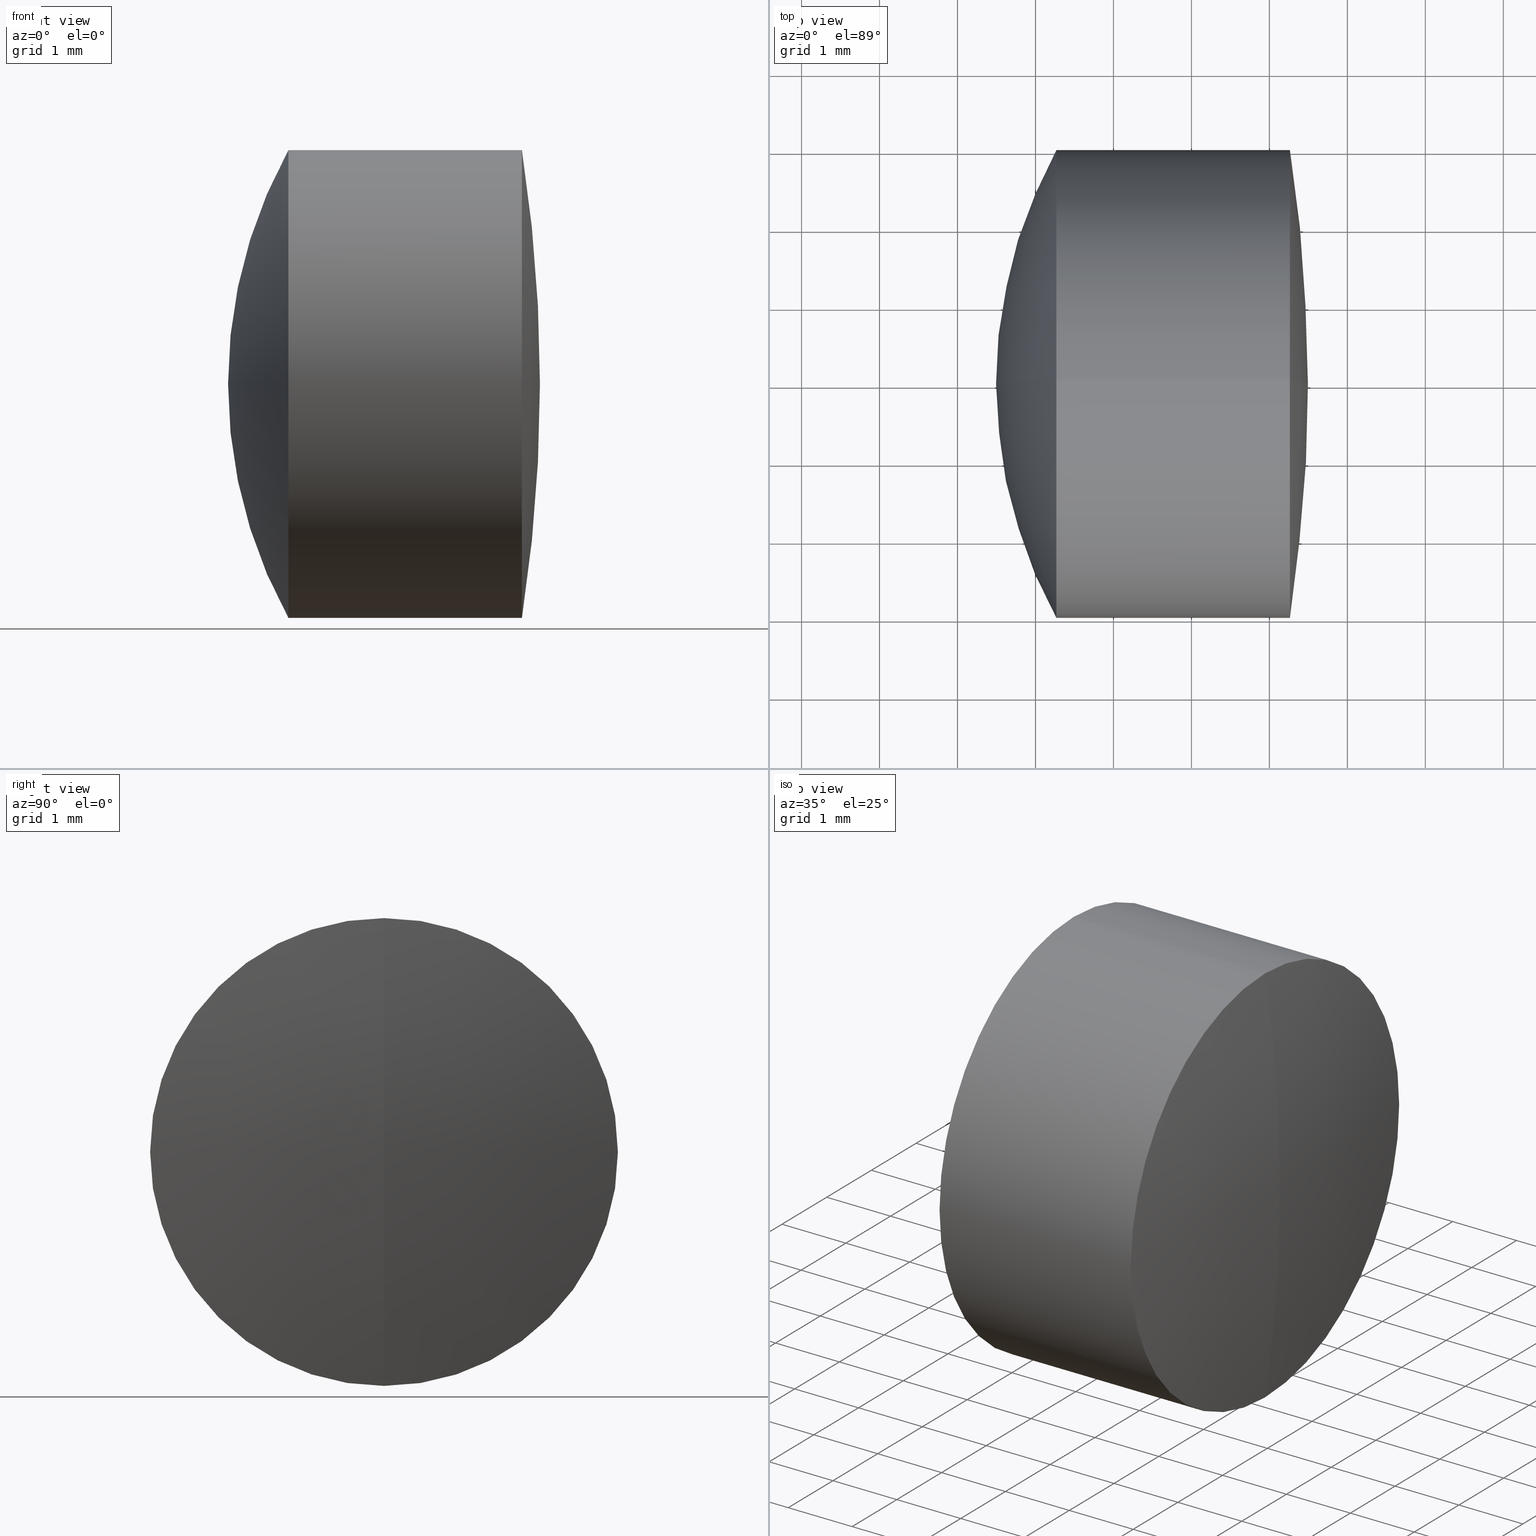
[diagram: canonical four-view strip — front | top / right | iso, engineering-drawing reading convention]
A machine part, canonical four-view strip (front | top / right | iso — engineering-drawing reading convention). The complete STEP part file that produces these views, byte-faithful:
ISO-10303-21;
HEADER;
FILE_DESCRIPTION (( 'STEP AP214' ),
    '1' );
FILE_NAME ('145006.STEP',
    '2019-05-06T08:13:43',
    ( 'user' ),
    ( '΢���й�' ),
    'SwSTEP 2.0',
    'SolidWorks 2016',
    '' );
FILE_SCHEMA (( 'AUTOMOTIVE_DESIGN' ));
ENDSEC;

DATA;
#1 = CARTESIAN_POINT ( 'NONE',  ( 2.881554070428458600, 0.0000000000000000000, 0.0000000000000000000 ) ) ;
#2 = CARTESIAN_POINT ( 'NONE',  ( 2.881554070428458600, 0.0000000000000000000, 0.0000000000000000000 ) ) ;
#3 = ADVANCED_FACE ( 'NONE', ( #130 ), #185, .T. ) ;
#4 = AXIS2_PLACEMENT_3D ( 'NONE', #27, #309, #134 ) ;
#5 = SPHERICAL_SURFACE ( 'NONE', #325, 19.60000000000000100 ) ;
#6 = DIRECTION ( 'NONE',  ( 0.0000000000000000000, -1.000000000000000000, 0.0000000000000000000 ) ) ;
#7 = ORIENTED_EDGE ( 'NONE', *, *, #293, .F. ) ;
#8 = CARTESIAN_POINT ( 'NONE',  ( 2.881554070428458100, 0.0000000000000000000, 3.000000000000000000 ) ) ;
#9 = ORIENTED_EDGE ( 'NONE', *, *, #315, .T. ) ;
#10 = AXIS2_PLACEMENT_3D ( 'NONE', #57, #6, #75 ) ;
#11 = CARTESIAN_POINT ( 'NONE',  ( -0.6055650844040809700, 0.0000000000000000000, 3.388131789017201400E-018 ) ) ;
#12 = CLOSED_SHELL ( 'NONE', ( #177, #291, #207, #256, #34, #229 ) ) ;
#13 = DIRECTION ( 'NONE',  ( 0.0000000000000000000, 0.0000000000000000000, 1.000000000000000000 ) ) ;
#14 = EDGE_CURVE ( 'NONE', #227, #132, #180, .T. ) ;
#15 = SHAPE_DEFINITION_REPRESENTATION ( #47, #55 ) ;
#16 = AXIS2_PLACEMENT_3D ( 'NONE', #219, #267, #45 ) ;
#17 = ORIENTED_EDGE ( 'NONE', *, *, #197, .T. ) ;
#18 = DIRECTION ( 'NONE',  ( 0.0000000000000000000, 1.000000000000000000, 0.0000000000000000000 ) ) ;
#19 =( NAMED_UNIT ( * ) PLANE_ANGLE_UNIT ( ) SI_UNIT ( $, .RADIAN. ) );
#20 = MANIFOLD_SOLID_BREP ( '��ת3', #37 ) ;
#21 = CARTESIAN_POINT ( 'NONE',  ( 7.694434915595918400, 0.0000000000000000000, 3.388131899457728100E-018 ) ) ;
#22 = ORIENTED_EDGE ( 'NONE', *, *, #332, .F. ) ;
#23 = FILL_AREA_STYLE ('',( #224 ) ) ;
#24 = AXIS2_PLACEMENT_3D ( 'NONE', #175, #96, #269 ) ;
#25 = VERTEX_POINT ( 'NONE', #114 ) ;
#26 = SPHERICAL_SURFACE ( 'NONE', #192, 6.199999999999998400 ) ;
#27 = CARTESIAN_POINT ( 'NONE',  ( 7.694434915595918400, 0.0000000000000000000, 3.388131899457728100E-018 ) ) ;
#28 = EDGE_CURVE ( 'NONE', #187, #33, #204, .T. ) ;
#29 =( NAMED_UNIT ( * ) PLANE_ANGLE_UNIT ( ) SI_UNIT ( $, .RADIAN. ) );
#30 = CARTESIAN_POINT ( 'NONE',  ( -0.6055650844040809700, 0.0000000000000000000, 3.388131789017201400E-018 ) ) ;
#31 = DIRECTION ( 'NONE',  ( 0.0000000000000000000, -1.000000000000000000, -1.224646799147353200E-016 ) ) ;
#32 = SPHERICAL_SURFACE ( 'NONE', #186, 6.199999999999998400 ) ;
#33 = VERTEX_POINT ( 'NONE', #143 ) ;
#34 = ADVANCED_FACE ( 'NONE', ( #344 ), #145, .T. ) ;
#35 = CARTESIAN_POINT ( 'NONE',  ( 5.263482388303502000, 0.0000000000000000000, 0.0000000000000000000 ) ) ;
#36 = AXIS2_PLACEMENT_3D ( 'NONE', #339, #196, #314 ) ;
#37 = CLOSED_SHELL ( 'NONE', ( #183, #3, #115, #342, #118, #51 ) ) ;
#38 = ORIENTED_EDGE ( 'NONE', *, *, #95, .F. ) ;
#39 = SPHERICAL_SURFACE ( 'NONE', #16, 4.599999999999999600 ) ;
#40 = VECTOR ( 'NONE', #149, 1000.000000000000000 ) ;
#41 = DIRECTION ( 'NONE',  ( -0.0000000000000000000, 1.000000000000000000, 1.224646799147353200E-016 ) ) ;
#42 = FACE_OUTER_BOUND ( 'NONE', #168, .T. ) ;
#43 = AXIS2_PLACEMENT_3D ( 'NONE', #272, #67, #239 ) ;
#44 = CARTESIAN_POINT ( 'NONE',  ( 2.881554070428458100, 0.0000000000000000000, 0.0000000000000000000 ) ) ;
#45 = DIRECTION ( 'NONE',  ( 0.0000000000000000000, 0.0000000000000000000, 1.000000000000000000 ) ) ;
#46 = CIRCLE ( 'NONE', #335, 2.999999999999997800 ) ;
#47 = PRODUCT_DEFINITION_SHAPE ( 'NONE', 'NONE',  #52 ) ;
#48 = FACE_OUTER_BOUND ( 'NONE', #199, .T. ) ;
#49 = EDGE_LOOP ( 'NONE', ( #218, #247, #151 ) ) ;
#50 =( NAMED_UNIT ( * ) PLANE_ANGLE_UNIT ( ) SI_UNIT ( $, .RADIAN. ) );
#51 = ADVANCED_FACE ( 'NONE', ( #89 ), #5, .T. ) ;
#52 = PRODUCT_DEFINITION ( 'δ֪', '', #73, #74 ) ;
#53 = CARTESIAN_POINT ( 'NONE',  ( -14.10556508440408200, 0.0000000000000000000, 0.0000000000000000000 ) ) ;
#54 = CARTESIAN_POINT ( 'NONE',  ( 0.0000000000000000000, 0.0000000000000000000, 0.0000000000000000000 ) ) ;
#55 = ADVANCED_BREP_SHAPE_REPRESENTATION ( '145006', ( #154, #20, #62 ), #69 ) ;
#56 = UNCERTAINTY_MEASURE_WITH_UNIT (LENGTH_MEASURE( 1.000000000000000100E-005 ), #276, 'distance_accuracy_value', 'NONE');
#57 = CARTESIAN_POINT ( 'NONE',  ( -0.6055650844040809700, 0.0000000000000000000, 3.388131789017201400E-018 ) ) ;
#58 = MECHANICAL_DESIGN_GEOMETRIC_PRESENTATION_REPRESENTATION (  '', ( #243 ), #305 ) ;
#59 = LINE ( 'NONE', #161, #288 ) ;
#60 = PRODUCT_CONTEXT ( 'NONE', #107, 'mechanical' ) ;
#61 = CARTESIAN_POINT ( 'NONE',  ( -0.5519199926577972300, 0.0000000000000000000, 0.0000000000000000000 ) ) ;
#62 = AXIS2_PLACEMENT_3D ( 'NONE', #54, #82, #265 ) ;
#63 = VECTOR ( 'NONE', #216, 1000.000000000000000 ) ;
#64 = EDGE_CURVE ( 'NONE', #232, #132, #79, .T. ) ;
#65 = VECTOR ( 'NONE', #310, 1000.000000000000000 ) ;
#66 = SURFACE_SIDE_STYLE ('',( #214 ) ) ;
#67 = DIRECTION ( 'NONE',  ( -1.000000000000000000, -0.0000000000000000000, -0.0000000000000000000 ) ) ;
#68 = CIRCLE ( 'NONE', #289, 2.999999999999998700 ) ;
#69 =( GEOMETRIC_REPRESENTATION_CONTEXT ( 3 ) GLOBAL_UNCERTAINTY_ASSIGNED_CONTEXT ( ( #56 ) ) GLOBAL_UNIT_ASSIGNED_CONTEXT ( ( #276, #19, #321 ) ) REPRESENTATION_CONTEXT ( 'NONE', 'WORKASPACE' ) );
#70 = ORIENTED_EDGE ( 'NONE', *, *, #274, .T. ) ;
#71 = CARTESIAN_POINT ( 'NONE',  ( -14.10556508440408200, 0.0000000000000000000, 0.0000000000000000000 ) ) ;
#72 = DIRECTION ( 'NONE',  ( 0.0000000000000000000, 0.0000000000000000000, 1.000000000000000000 ) ) ;
#73 = PRODUCT_DEFINITION_FORMATION_WITH_SPECIFIED_SOURCE ( '�κ�', '', #194, .NOT_KNOWN. ) ;
#74 = PRODUCT_DEFINITION_CONTEXT ( 'detailed design', #302, 'design' ) ;
#75 = DIRECTION ( 'NONE',  ( 0.0000000000000000000, 0.0000000000000000000, -1.000000000000000000 ) ) ;
#76 = AXIS2_PLACEMENT_3D ( 'NONE', #44, #163, #258 ) ;
#77 = DIRECTION ( 'NONE',  ( 0.0000000000000000000, 0.0000000000000000000, -1.000000000000000000 ) ) ;
#78 = ORIENTED_EDGE ( 'NONE', *, *, #279, .F. ) ;
#79 = CIRCLE ( 'NONE', #10, 4.599999999999999600 ) ;
#80 = EDGE_CURVE ( 'NONE', #131, #206, #59, .T. ) ;
#81 = AXIS2_PLACEMENT_3D ( 'NONE', #318, #198, #72 ) ;
#82 = DIRECTION ( 'NONE',  ( 0.0000000000000000000, 0.0000000000000000000, 1.000000000000000000 ) ) ;
#83 = FACE_OUTER_BOUND ( 'NONE', #213, .T. ) ;
#84 = DIRECTION ( 'NONE',  ( -1.000000000000000000, -0.0000000000000000000, -0.0000000000000000000 ) ) ;
#85 = EDGE_LOOP ( 'NONE', ( #137, #306, #22 ) ) ;
#86 = UNCERTAINTY_MEASURE_WITH_UNIT (LENGTH_MEASURE( 1.000000000000000100E-005 ), #116, 'distance_accuracy_value', 'NONE');
#87 = AXIS2_PLACEMENT_3D ( 'NONE', #324, #295, #217 ) ;
#88 = DIRECTION ( 'NONE',  ( 0.0000000000000000000, 0.0000000000000000000, 1.000000000000000000 ) ) ;
#89 = FACE_OUTER_BOUND ( 'NONE', #170, .T. ) ;
#90 = DIRECTION ( 'NONE',  ( 0.0000000000000000000, -1.224646799147353200E-016, 1.000000000000000000 ) ) ;
#91 = DIRECTION ( 'NONE',  ( 0.0000000000000000000, -1.224646799147353200E-016, 1.000000000000000000 ) ) ;
#92 = CIRCLE ( 'NONE', #87, 3.000000000000000000 ) ;
#93 = SURFACE_SIDE_STYLE ('',( #113 ) ) ;
#94 = DIRECTION ( 'NONE',  ( -1.000000000000000000, -0.0000000000000000000, -0.0000000000000000000 ) ) ;
#95 = EDGE_CURVE ( 'NONE', #227, #231, #195, .T. ) ;
#96 = DIRECTION ( 'NONE',  ( 0.0000000000000000000, 1.000000000000000000, 0.0000000000000000000 ) ) ;
#97 = ORIENTED_EDGE ( 'NONE', *, *, #138, .F. ) ;
#98 = DIRECTION ( 'NONE',  ( -1.000000000000000000, -0.0000000000000000000, -0.0000000000000000000 ) ) ;
#99 = PRESENTATION_LAYER_ASSIGNMENT (  '', '', ( #243 ) ) ;
#100 = CARTESIAN_POINT ( 'NONE',  ( -0.8160621761658039000, 0.0000000000000000000, 0.0000000000000000000 ) ) ;
#101 = UNCERTAINTY_MEASURE_WITH_UNIT (LENGTH_MEASURE( 1.000000000000000100E-005 ), #135, 'distance_accuracy_value', 'NONE');
#102 = EDGE_LOOP ( 'NONE', ( #127, #70, #223 ) ) ;
#103 =( NAMED_UNIT ( * ) PLANE_ANGLE_UNIT ( ) SI_UNIT ( $, .RADIAN. ) );
#104 = CIRCLE ( 'NONE', #211, 3.000000000000000000 ) ;
#105 = DIRECTION ( 'NONE',  ( 0.0000000000000000000, -1.000000000000000000, 0.0000000000000000000 ) ) ;
#106 = ORIENTED_EDGE ( 'NONE', *, *, #249, .F. ) ;
#107 = APPLICATION_CONTEXT ( 'automotive_design' ) ;
#108 = CARTESIAN_POINT ( 'NONE',  ( 2.881554070428458100, 0.0000000000000000000, 0.0000000000000000000 ) ) ;
#109 = STYLED_ITEM ( 'NONE', ( #119 ), #154 ) ;
#110 = FILL_AREA_STYLE ('',( #241 ) ) ;
#111 = CIRCLE ( 'NONE', #164, 4.599999999999999600 ) ;
#112 = AXIS2_PLACEMENT_3D ( 'NONE', #2, #343, #166 ) ;
#113 = SURFACE_STYLE_FILL_AREA ( #148 ) ;
#114 = CARTESIAN_POINT ( 'NONE',  ( 3.994434915595919100, 0.0000000000000000000, 2.850568955929084100E-016 ) ) ;
#115 = ADVANCED_FACE ( 'NONE', ( #273 ), #209, .F. ) ;
#116 =( LENGTH_UNIT ( ) NAMED_UNIT ( * ) SI_UNIT ( .MILLI., .METRE. ) );
#117 = AXIS2_PLACEMENT_3D ( 'NONE', #307, #299, #286 ) ;
#118 = ADVANCED_FACE ( 'NONE', ( #83 ), #346, .T. ) ;
#119 = PRESENTATION_STYLE_ASSIGNMENT (( #129 ) ) ;
#120 = EDGE_LOOP ( 'NONE', ( #97, #320, #270 ) ) ;
#121 = ORIENTED_EDGE ( 'NONE', *, *, #80, .T. ) ;
#122 = SPHERICAL_SURFACE ( 'NONE', #36, 4.599999999999999600 ) ;
#123 = AXIS2_PLACEMENT_3D ( 'NONE', #303, #31, #202 ) ;
#124 = DIRECTION ( 'NONE',  ( -0.0000000000000000000, 1.000000000000000000, 1.224646799147353200E-016 ) ) ;
#125 = CARTESIAN_POINT ( 'NONE',  ( -14.10556508440408200, 0.0000000000000000000, 0.0000000000000000000 ) ) ;
#126 = AXIS2_PLACEMENT_3D ( 'NONE', #11, #41, #90 ) ;
#127 = ORIENTED_EDGE ( 'NONE', *, *, #203, .F. ) ;
#128 = EDGE_LOOP ( 'NONE', ( #222, #17, #257 ) ) ;
#129 = SURFACE_STYLE_USAGE ( .BOTH. , #66 ) ;
#130 = FACE_OUTER_BOUND ( 'NONE', #157, .T. ) ;
#131 = VERTEX_POINT ( 'NONE', #262 ) ;
#132 = VERTEX_POINT ( 'NONE', #8 ) ;
#133 = DIRECTION ( 'NONE',  ( 0.0000000000000000000, -1.000000000000000000, 0.0000000000000000000 ) ) ;
#134 = DIRECTION ( 'NONE',  ( 0.0000000000000000000, 0.0000000000000000000, 1.000000000000000000 ) ) ;
#135 =( LENGTH_UNIT ( ) NAMED_UNIT ( * ) SI_UNIT ( .MILLI., .METRE. ) );
#136 = DIRECTION ( 'NONE',  ( -0.0000000000000000000, 1.000000000000000000, 1.224646799147353200E-016 ) ) ;
#137 = ORIENTED_EDGE ( 'NONE', *, *, #249, .T. ) ;
#138 = EDGE_CURVE ( 'NONE', #300, #200, #250, .T. ) ;
#139 =( NAMED_UNIT ( * ) SI_UNIT ( $, .STERADIAN. ) SOLID_ANGLE_UNIT ( ) );
#140 = CYLINDRICAL_SURFACE ( 'NONE', #311, 3.000000000000000000 ) ;
#141 = DIRECTION ( 'NONE',  ( -1.000000000000000000, -0.0000000000000000000, -0.0000000000000000000 ) ) ;
#142 = CARTESIAN_POINT ( 'NONE',  ( 2.881554070428458600, 0.0000000000000000000, 2.999999999999998200 ) ) ;
#143 = CARTESIAN_POINT ( 'NONE',  ( 1.494434915595920500, 0.0000000000000000000, -3.762523758362216700E-016 ) ) ;
#144 = EDGE_CURVE ( 'NONE', #132, #227, #281, .T. ) ;
#145 = CYLINDRICAL_SURFACE ( 'NONE', #43, 3.000000000000000000 ) ;
#146 = ORIENTED_EDGE ( 'NONE', *, *, #220, .T. ) ;
#147 = CARTESIAN_POINT ( 'NONE',  ( 2.268570929095705200, 0.0000000000000000000, 0.0000000000000000000 ) ) ;
#148 = FILL_AREA_STYLE ('',( #316 ) ) ;
#149 = DIRECTION ( 'NONE',  ( -1.000000000000000000, -0.0000000000000000000, -0.0000000000000000000 ) ) ;
#150 =( GEOMETRIC_REPRESENTATION_CONTEXT ( 3 ) GLOBAL_UNCERTAINTY_ASSIGNED_CONTEXT ( ( #101 ) ) GLOBAL_UNIT_ASSIGNED_CONTEXT ( ( #135, #103, #282 ) ) REPRESENTATION_CONTEXT ( 'NONE', 'WORKASPACE' ) );
#151 = ORIENTED_EDGE ( 'NONE', *, *, #179, .T. ) ;
#152 = DIRECTION ( 'NONE',  ( 0.0000000000000000000, 0.0000000000000000000, 1.000000000000000000 ) ) ;
#153 = DIRECTION ( 'NONE',  ( 0.0000000000000000000, 1.000000000000000000, 0.0000000000000000000 ) ) ;
#154 = MANIFOLD_SOLID_BREP ( '��ת1', #12 ) ;
#155 = CIRCLE ( 'NONE', #117, 2.999999999999997800 ) ;
#156 = CARTESIAN_POINT ( 'NONE',  ( -0.6055650844040809700, 0.0000000000000000000, 3.388131789017201400E-018 ) ) ;
#157 = EDGE_LOOP ( 'NONE', ( #146, #121, #7, #78 ) ) ;
#158 = DIRECTION ( 'NONE',  ( -0.0000000000000000000, -1.000000000000000000, -0.0000000000000000000 ) ) ;
#159 = MECHANICAL_DESIGN_GEOMETRIC_PRESENTATION_REPRESENTATION (  '', ( #109 ), #150 ) ;
#160 = LINE ( 'NONE', #245, #65 ) ;
#161 = CARTESIAN_POINT ( 'NONE',  ( -0.5519199926577972300, 3.673940397442057900E-016, -2.999999999999998200 ) ) ;
#162 = ORIENTED_EDGE ( 'NONE', *, *, #64, .F. ) ;
#163 = DIRECTION ( 'NONE',  ( -1.000000000000000000, -0.0000000000000000000, -0.0000000000000000000 ) ) ;
#164 = AXIS2_PLACEMENT_3D ( 'NONE', #156, #105, #167 ) ;
#165 = COLOUR_RGB ( '',1.000000000000000000, 1.000000000000000000, 1.000000000000000000 ) ;
#166 = DIRECTION ( 'NONE',  ( 0.0000000000000000000, 0.0000000000000000000, 1.000000000000000000 ) ) ;
#167 = DIRECTION ( 'NONE',  ( 0.0000000000000000000, 0.0000000000000000000, -1.000000000000000000 ) ) ;
#168 = EDGE_LOOP ( 'NONE', ( #172, #259, #242, #333 ) ) ;
#169 = AXIS2_PLACEMENT_3D ( 'NONE', #61, #84, #251 ) ;
#170 = EDGE_LOOP ( 'NONE', ( #290, #190, #331 ) ) ;
#171 = ORIENTED_EDGE ( 'NONE', *, *, #236, .T. ) ;
#172 = ORIENTED_EDGE ( 'NONE', *, *, #144, .T. ) ;
#173 = AXIS2_PLACEMENT_3D ( 'NONE', #125, #153, #234 ) ;
#174 = COLOUR_RGB ( '',1.000000000000000000, 1.000000000000000000, 1.000000000000000000 ) ;
#175 = CARTESIAN_POINT ( 'NONE',  ( -0.6055650844040809700, 0.0000000000000000000, 3.388131789017201400E-018 ) ) ;
#176 = EDGE_LOOP ( 'NONE', ( #38, #212, #171, #106 ) ) ;
#177 = ADVANCED_FACE ( 'NONE', ( #329 ), #122, .T. ) ;
#178 = CIRCLE ( 'NONE', #271, 19.60000000000000100 ) ;
#179 = EDGE_CURVE ( 'NONE', #206, #308, #230, .T. ) ;
#180 = CIRCLE ( 'NONE', #76, 3.000000000000000000 ) ;
#181 = UNCERTAINTY_MEASURE_WITH_UNIT (LENGTH_MEASURE( 1.000000000000000100E-005 ), #340, 'distance_accuracy_value', 'NONE');
#182 = DIRECTION ( 'NONE',  ( -0.0000000000000000000, -1.000000000000000000, -0.0000000000000000000 ) ) ;
#183 = ADVANCED_FACE ( 'NONE', ( #225 ), #326, .T. ) ;
#184 = DIRECTION ( 'NONE',  ( 0.0000000000000000000, -1.224646799147353200E-016, 1.000000000000000000 ) ) ;
#185 = CYLINDRICAL_SURFACE ( 'NONE', #169, 2.999999999999998200 ) ;
#186 = AXIS2_PLACEMENT_3D ( 'NONE', #201, #182, #221 ) ;
#187 = VERTEX_POINT ( 'NONE', #205 ) ;
#188 = DIRECTION ( 'NONE',  ( 0.0000000000000000000, 0.0000000000000000000, -1.000000000000000000 ) ) ;
#189 = FACE_OUTER_BOUND ( 'NONE', #85, .T. ) ;
#190 = ORIENTED_EDGE ( 'NONE', *, *, #138, .T. ) ;
#191 = CARTESIAN_POINT ( 'NONE',  ( 5.494434915595920000, 0.0000000000000000000, 1.200153863164406300E-015 ) ) ;
#192 = AXIS2_PLACEMENT_3D ( 'NONE', #21, #158, #77 ) ;
#193 = APPLICATION_PROTOCOL_DEFINITION ( 'draft international standard', 'automotive_design', 1998, #302 ) ;
#194 = PRODUCT ( '145006', '145006', '', ( #60 ) ) ;
#195 = LINE ( 'NONE', #292, #40 ) ;
#196 = DIRECTION ( 'NONE',  ( 0.0000000000000000000, 1.000000000000000000, 0.0000000000000000000 ) ) ;
#197 = EDGE_CURVE ( 'NONE', #187, #231, #92, .T. ) ;
#198 = DIRECTION ( 'NONE',  ( -1.000000000000000000, -0.0000000000000000000, -0.0000000000000000000 ) ) ;
#199 = EDGE_LOOP ( 'NONE', ( #278, #319, #210 ) ) ;
#200 = VERTEX_POINT ( 'NONE', #322 ) ;
#201 = CARTESIAN_POINT ( 'NONE',  ( 7.694434915595918400, 0.0000000000000000000, 3.388131899457728100E-018 ) ) ;
#202 = DIRECTION ( 'NONE',  ( 0.0000000000000000000, 1.224646799147353200E-016, -1.000000000000000000 ) ) ;
#203 = EDGE_CURVE ( 'NONE', #25, #206, #240, .T. ) ;
#204 = CIRCLE ( 'NONE', #123, 6.199999999999998400 ) ;
#205 = CARTESIAN_POINT ( 'NONE',  ( 2.268570929095705700, -3.673940397442059400E-016, 3.000000000000000000 ) ) ;
#206 = VERTEX_POINT ( 'NONE', #347 ) ;
#207 = ADVANCED_FACE ( 'NONE', ( #189 ), #26, .T. ) ;
#208 = CARTESIAN_POINT ( 'NONE',  ( -0.5519199926577972300, 0.0000000000000000000, 2.999999999999998200 ) ) ;
#209 = SPHERICAL_SURFACE ( 'NONE', #24, 4.599999999999999600 ) ;
#210 = ORIENTED_EDGE ( 'NONE', *, *, #14, .F. ) ;
#211 = AXIS2_PLACEMENT_3D ( 'NONE', #147, #297, #13 ) ;
#212 = ORIENTED_EDGE ( 'NONE', *, *, #14, .T. ) ;
#213 = EDGE_LOOP ( 'NONE', ( #336, #9, #327, #284 ) ) ;
#214 = SURFACE_STYLE_FILL_AREA ( #110 ) ;
#215 = PRESENTATION_LAYER_ASSIGNMENT (  '', '', ( #109 ) ) ;
#216 = DIRECTION ( 'NONE',  ( -1.000000000000000000, -0.0000000000000000000, -0.0000000000000000000 ) ) ;
#217 = DIRECTION ( 'NONE',  ( 0.0000000000000000000, 0.0000000000000000000, 1.000000000000000000 ) ) ;
#218 = ORIENTED_EDGE ( 'NONE', *, *, #274, .F. ) ;
#219 = CARTESIAN_POINT ( 'NONE',  ( -0.6055650844040809700, 0.0000000000000000000, 3.388131789017201400E-018 ) ) ;
#220 = EDGE_CURVE ( 'NONE', #200, #131, #155, .T. ) ;
#221 = DIRECTION ( 'NONE',  ( 0.0000000000000000000, 0.0000000000000000000, -1.000000000000000000 ) ) ;
#222 = ORIENTED_EDGE ( 'NONE', *, *, #28, .F. ) ;
#223 = ORIENTED_EDGE ( 'NONE', *, *, #293, .T. ) ;
#224 = FILL_AREA_STYLE_COLOUR ( '', #323 ) ;
#225 = FACE_OUTER_BOUND ( 'NONE', #120, .T. ) ;
#226 = AXIS2_PLACEMENT_3D ( 'NONE', #312, #328, #253 ) ;
#227 = VERTEX_POINT ( 'NONE', #337 ) ;
#228 = FACE_OUTER_BOUND ( 'NONE', #102, .T. ) ;
#229 = ADVANCED_FACE ( 'NONE', ( #48 ), #317, .T. ) ;
#230 = CIRCLE ( 'NONE', #112, 2.999999999999998700 ) ;
#231 = VERTEX_POINT ( 'NONE', #345 ) ;
#232 = VERTEX_POINT ( 'NONE', #244 ) ;
#233 = SURFACE_SIDE_STYLE ('',( #313 ) ) ;
#234 = DIRECTION ( 'NONE',  ( 0.0000000000000000000, 0.0000000000000000000, 1.000000000000000000 ) ) ;
#235 = PRESENTATION_STYLE_ASSIGNMENT (( #246 ) ) ;
#236 = EDGE_CURVE ( 'NONE', #132, #187, #160, .T. ) ;
#237 = PRESENTATION_LAYER_ASSIGNMENT (  '', '', ( #260 ) ) ;
#238 = DIRECTION ( 'NONE',  ( -1.000000000000000000, -0.0000000000000000000, -0.0000000000000000000 ) ) ;
#239 = DIRECTION ( 'NONE',  ( 0.0000000000000000000, 0.0000000000000000000, 1.000000000000000000 ) ) ;
#240 = CIRCLE ( 'NONE', #126, 4.599999999999999600 ) ;
#241 = FILL_AREA_STYLE_COLOUR ( '', #174 ) ;
#242 = ORIENTED_EDGE ( 'NONE', *, *, #197, .F. ) ;
#243 = STYLED_ITEM ( 'NONE', ( #268 ), #20 ) ;
#244 = CARTESIAN_POINT ( 'NONE',  ( 3.994434915595919100, 0.0000000000000000000, 2.850568955929084100E-016 ) ) ;
#245 = CARTESIAN_POINT ( 'NONE',  ( -0.8160621761658039000, 0.0000000000000000000, 3.000000000000000000 ) ) ;
#246 = SURFACE_STYLE_USAGE ( .BOTH. , #233 ) ;
#247 = ORIENTED_EDGE ( 'NONE', *, *, #203, .T. ) ;
#248 = AXIS2_PLACEMENT_3D ( 'NONE', #30, #136, #91 ) ;
#249 = EDGE_CURVE ( 'NONE', #231, #187, #104, .T. ) ;
#250 = CIRCLE ( 'NONE', #255, 19.60000000000000100 ) ;
#251 = DIRECTION ( 'NONE',  ( 0.0000000000000000000, 0.0000000000000000000, 1.000000000000000000 ) ) ;
#252 = EDGE_LOOP ( 'NONE', ( #162, #301, #283 ) ) ;
#253 = DIRECTION ( 'NONE',  ( 0.0000000000000000000, 0.0000000000000000000, 1.000000000000000000 ) ) ;
#254 = LINE ( 'NONE', #208, #63 ) ;
#255 = AXIS2_PLACEMENT_3D ( 'NONE', #280, #133, #188 ) ;
#256 = ADVANCED_FACE ( 'NONE', ( #304 ), #32, .T. ) ;
#257 = ORIENTED_EDGE ( 'NONE', *, *, #332, .T. ) ;
#258 = DIRECTION ( 'NONE',  ( 0.0000000000000000000, 0.0000000000000000000, 1.000000000000000000 ) ) ;
#259 = ORIENTED_EDGE ( 'NONE', *, *, #95, .T. ) ;
#260 = STYLED_ITEM ( 'NONE', ( #235 ), #55 ) ;
#261 = DIRECTION ( 'NONE',  ( 0.0000000000000000000, 0.0000000000000000000, 1.000000000000000000 ) ) ;
#262 = CARTESIAN_POINT ( 'NONE',  ( 5.263482388303502000, 3.673940397442057400E-016, -2.999999999999997800 ) ) ;
#263 = APPLICATION_PROTOCOL_DEFINITION ( 'draft international standard', 'automotive_design', 1998, #107 ) ;
#264 = MECHANICAL_DESIGN_GEOMETRIC_PRESENTATION_REPRESENTATION (  '', ( #260 ), #330 ) ;
#265 = DIRECTION ( 'NONE',  ( 1.000000000000000000, 0.0000000000000000000, 0.0000000000000000000 ) ) ;
#266 = CIRCLE ( 'NONE', #4, 6.199999999999998400 ) ;
#267 = DIRECTION ( 'NONE',  ( 0.0000000000000000000, 1.000000000000000000, 0.0000000000000000000 ) ) ;
#268 = PRESENTATION_STYLE_ASSIGNMENT (( #334 ) ) ;
#269 = DIRECTION ( 'NONE',  ( 0.0000000000000000000, 0.0000000000000000000, 1.000000000000000000 ) ) ;
#270 = ORIENTED_EDGE ( 'NONE', *, *, #220, .F. ) ;
#271 = AXIS2_PLACEMENT_3D ( 'NONE', #53, #124, #184 ) ;
#272 = CARTESIAN_POINT ( 'NONE',  ( -0.8160621761658039000, 0.0000000000000000000, 0.0000000000000000000 ) ) ;
#273 = FACE_OUTER_BOUND ( 'NONE', #49, .T. ) ;
#274 = EDGE_CURVE ( 'NONE', #25, #308, #111, .T. ) ;
#275 = DIRECTION ( 'NONE',  ( 0.0000000000000000000, 0.0000000000000000000, 1.000000000000000000 ) ) ;
#276 =( LENGTH_UNIT ( ) NAMED_UNIT ( * ) SI_UNIT ( .MILLI., .METRE. ) );
#277 = PRODUCT_RELATED_PRODUCT_CATEGORY ( 'part', '', ( #194 ) ) ;
#278 = ORIENTED_EDGE ( 'NONE', *, *, #285, .F. ) ;
#279 = EDGE_CURVE ( 'NONE', #200, #308, #254, .T. ) ;
#280 = CARTESIAN_POINT ( 'NONE',  ( -14.10556508440408200, 0.0000000000000000000, 0.0000000000000000000 ) ) ;
#281 = CIRCLE ( 'NONE', #341, 3.000000000000000000 ) ;
#282 =( NAMED_UNIT ( * ) SI_UNIT ( $, .STERADIAN. ) SOLID_ANGLE_UNIT ( ) );
#283 = ORIENTED_EDGE ( 'NONE', *, *, #144, .F. ) ;
#284 = ORIENTED_EDGE ( 'NONE', *, *, #179, .F. ) ;
#285 = EDGE_CURVE ( 'NONE', #232, #227, #338, .T. ) ;
#286 = DIRECTION ( 'NONE',  ( 0.0000000000000000000, 0.0000000000000000000, 1.000000000000000000 ) ) ;
#287 = EDGE_CURVE ( 'NONE', #300, #131, #178, .T. ) ;
#288 = VECTOR ( 'NONE', #238, 1000.000000000000000 ) ;
#289 = AXIS2_PLACEMENT_3D ( 'NONE', #1, #98, #261 ) ;
#290 = ORIENTED_EDGE ( 'NONE', *, *, #287, .F. ) ;
#291 = ADVANCED_FACE ( 'NONE', ( #42 ), #140, .T. ) ;
#292 = CARTESIAN_POINT ( 'NONE',  ( -0.8160621761658039000, 3.673940397442059900E-016, -3.000000000000000000 ) ) ;
#293 = EDGE_CURVE ( 'NONE', #308, #206, #68, .T. ) ;
#294 = DIRECTION ( 'NONE',  ( 0.0000000000000000000, 0.0000000000000000000, 1.000000000000000000 ) ) ;
#295 = DIRECTION ( 'NONE',  ( -1.000000000000000000, -0.0000000000000000000, -0.0000000000000000000 ) ) ;
#296 = DIRECTION ( 'NONE',  ( -1.000000000000000000, -0.0000000000000000000, -0.0000000000000000000 ) ) ;
#297 = DIRECTION ( 'NONE',  ( -1.000000000000000000, -0.0000000000000000000, -0.0000000000000000000 ) ) ;
#298 =( NAMED_UNIT ( * ) SI_UNIT ( $, .STERADIAN. ) SOLID_ANGLE_UNIT ( ) );
#299 = DIRECTION ( 'NONE',  ( -1.000000000000000000, -0.0000000000000000000, -0.0000000000000000000 ) ) ;
#300 = VERTEX_POINT ( 'NONE', #191 ) ;
#301 = ORIENTED_EDGE ( 'NONE', *, *, #285, .T. ) ;
#302 = APPLICATION_CONTEXT ( 'automotive_design' ) ;
#303 = CARTESIAN_POINT ( 'NONE',  ( 7.694434915595918400, 0.0000000000000000000, 3.388131899457728100E-018 ) ) ;
#304 = FACE_OUTER_BOUND ( 'NONE', #128, .T. ) ;
#305 =( GEOMETRIC_REPRESENTATION_CONTEXT ( 3 ) GLOBAL_UNCERTAINTY_ASSIGNED_CONTEXT ( ( #181 ) ) GLOBAL_UNIT_ASSIGNED_CONTEXT ( ( #340, #50, #139 ) ) REPRESENTATION_CONTEXT ( 'NONE', 'WORKASPACE' ) );
#306 = ORIENTED_EDGE ( 'NONE', *, *, #28, .T. ) ;
#307 = CARTESIAN_POINT ( 'NONE',  ( 5.263482388303502000, 0.0000000000000000000, 0.0000000000000000000 ) ) ;
#308 = VERTEX_POINT ( 'NONE', #142 ) ;
#309 = DIRECTION ( 'NONE',  ( 0.0000000000000000000, 1.000000000000000000, -0.0000000000000000000 ) ) ;
#310 = DIRECTION ( 'NONE',  ( -1.000000000000000000, -0.0000000000000000000, -0.0000000000000000000 ) ) ;
#311 = AXIS2_PLACEMENT_3D ( 'NONE', #100, #141, #152 ) ;
#312 = CARTESIAN_POINT ( 'NONE',  ( -0.6055650844040809700, 0.0000000000000000000, 3.388131789017201400E-018 ) ) ;
#313 = SURFACE_STYLE_FILL_AREA ( #23 ) ;
#314 = DIRECTION ( 'NONE',  ( 0.0000000000000000000, 0.0000000000000000000, 1.000000000000000000 ) ) ;
#315 = EDGE_CURVE ( 'NONE', #131, #200, #46, .T. ) ;
#316 = FILL_AREA_STYLE_COLOUR ( '', #165 ) ;
#317 = SPHERICAL_SURFACE ( 'NONE', #226, 4.599999999999999600 ) ;
#318 = CARTESIAN_POINT ( 'NONE',  ( -0.5519199926577972300, 0.0000000000000000000, 0.0000000000000000000 ) ) ;
#319 = ORIENTED_EDGE ( 'NONE', *, *, #64, .T. ) ;
#320 = ORIENTED_EDGE ( 'NONE', *, *, #287, .T. ) ;
#321 =( NAMED_UNIT ( * ) SI_UNIT ( $, .STERADIAN. ) SOLID_ANGLE_UNIT ( ) );
#322 = CARTESIAN_POINT ( 'NONE',  ( 5.263482388303502000, 0.0000000000000000000, 2.999999999999997800 ) ) ;
#323 = COLOUR_RGB ( '',1.000000000000000000, 1.000000000000000000, 1.000000000000000000 ) ;
#324 = CARTESIAN_POINT ( 'NONE',  ( 2.268570929095705200, 0.0000000000000000000, 0.0000000000000000000 ) ) ;
#325 = AXIS2_PLACEMENT_3D ( 'NONE', #71, #18, #88 ) ;
#326 = SPHERICAL_SURFACE ( 'NONE', #173, 19.60000000000000100 ) ;
#327 = ORIENTED_EDGE ( 'NONE', *, *, #279, .T. ) ;
#328 = DIRECTION ( 'NONE',  ( 0.0000000000000000000, 1.000000000000000000, 0.0000000000000000000 ) ) ;
#329 = FACE_OUTER_BOUND ( 'NONE', #252, .T. ) ;
#330 =( GEOMETRIC_REPRESENTATION_CONTEXT ( 3 ) GLOBAL_UNCERTAINTY_ASSIGNED_CONTEXT ( ( #86 ) ) GLOBAL_UNIT_ASSIGNED_CONTEXT ( ( #116, #29, #298 ) ) REPRESENTATION_CONTEXT ( 'NONE', 'WORKASPACE' ) );
#331 = ORIENTED_EDGE ( 'NONE', *, *, #315, .F. ) ;
#332 = EDGE_CURVE ( 'NONE', #231, #33, #266, .T. ) ;
#333 = ORIENTED_EDGE ( 'NONE', *, *, #236, .F. ) ;
#334 = SURFACE_STYLE_USAGE ( .BOTH. , #93 ) ;
#335 = AXIS2_PLACEMENT_3D ( 'NONE', #35, #296, #294 ) ;
#336 = ORIENTED_EDGE ( 'NONE', *, *, #80, .F. ) ;
#337 = CARTESIAN_POINT ( 'NONE',  ( 2.881554070428458100, 3.673940397442059900E-016, -3.000000000000000000 ) ) ;
#338 = CIRCLE ( 'NONE', #248, 4.599999999999999600 ) ;
#339 = CARTESIAN_POINT ( 'NONE',  ( -0.6055650844040809700, 0.0000000000000000000, 3.388131789017201400E-018 ) ) ;
#340 =( LENGTH_UNIT ( ) NAMED_UNIT ( * ) SI_UNIT ( .MILLI., .METRE. ) );
#341 = AXIS2_PLACEMENT_3D ( 'NONE', #108, #94, #275 ) ;
#342 = ADVANCED_FACE ( 'NONE', ( #228 ), #39, .F. ) ;
#343 = DIRECTION ( 'NONE',  ( -1.000000000000000000, -0.0000000000000000000, -0.0000000000000000000 ) ) ;
#344 = FACE_OUTER_BOUND ( 'NONE', #176, .T. ) ;
#345 = CARTESIAN_POINT ( 'NONE',  ( 2.268570929095705700, 0.0000000000000000000, -3.000000000000000000 ) ) ;
#346 = CYLINDRICAL_SURFACE ( 'NONE', #81, 2.999999999999998200 ) ;
#347 = CARTESIAN_POINT ( 'NONE',  ( 2.881554070428458600, 3.673940397442058400E-016, -2.999999999999998200 ) ) ;
ENDSEC;
END-ISO-10303-21;
